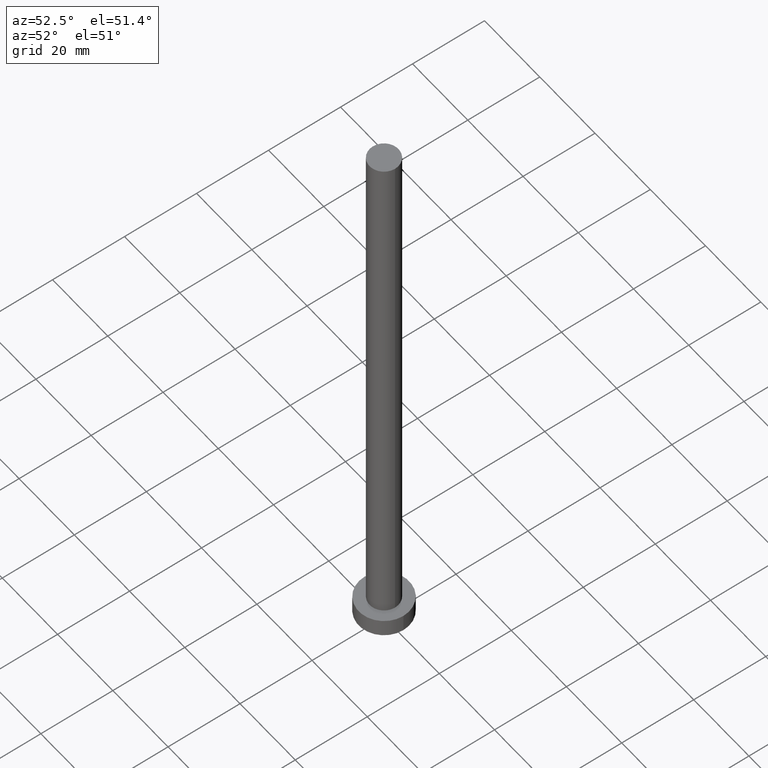
[diagram: clean part render]
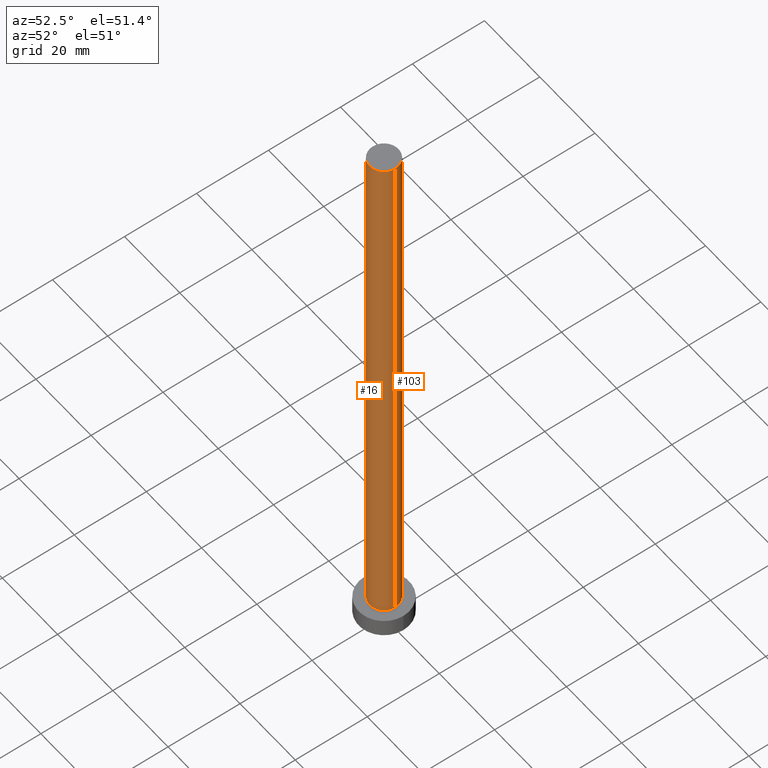
[diagram: same view with one multi-face feature highlighted, each face labeled with its STEP entity id]
A machine part, auxiliary view. The highlighted faces form ONE feature: a constant-radius fillet chain: 2 tangent blend faces with common blend radius 4 mm. The faces share edges in the B-rep.
Their STEP definitions:
[1] entity #103 (Cylinder):
#9 = EDGE_CURVE ( 'NONE', #182, #226, #143, .T. ) ;
#19 = EDGE_CURVE ( 'NONE', #226, #199, #69, .T. ) ;
#20 = ORIENTED_EDGE ( 'NONE', *, *, #19, .T. ) ;
#25 = ORIENTED_EDGE ( 'NONE', *, *, #178, .F. ) ;
#32 = FACE_OUTER_BOUND ( 'NONE', #243, .T. ) ;
#34 = CARTESIAN_POINT ( 'NONE',  ( 0.000000000000000000, 0.000000000000000000, 160.0000000000000000 ) ) ;
#46 = DIRECTION ( 'NONE',  ( 1.000000000000000000, 0.000000000000000000, 0.000000000000000000 ) ) ;
#47 = EDGE_CURVE ( 'NONE', #64, #199, #95, .T. ) ;
#50 = AXIS2_PLACEMENT_3D ( 'NONE', #147, #204, #118 ) ;
#55 = CYLINDRICAL_SURFACE ( 'NONE', #63, 4.000000000000000000 ) ;
#57 = CIRCLE ( 'NONE', #212, 4.000000000000000000 ) ;
#63 = AXIS2_PLACEMENT_3D ( 'NONE', #34, #233, #234 ) ;
#64 = VERTEX_POINT ( 'NONE', #163 ) ;
#69 = CIRCLE ( 'NONE', #50, 4.000000000000000000 ) ;
#84 = VECTOR ( 'NONE', #201, 1000.000000000000000 ) ;
#95 = LINE ( 'NONE', #231, #133 ) ;
#96 = CARTESIAN_POINT ( 'NONE',  ( -4.000000000000000000, 0.000000000000000000, 5.000000000000000000 ) ) ;
#103 = ADVANCED_FACE ( 'NONE', ( #32 ), #55, .T. ) ;
#112 = DIRECTION ( 'NONE',  ( 0.000000000000000000, 0.000000000000000000, 1.000000000000000000 ) ) ;
#118 = DIRECTION ( 'NONE',  ( 1.000000000000000000, 0.000000000000000000, 0.000000000000000000 ) ) ;
#130 = CARTESIAN_POINT ( 'NONE',  ( 4.000000000000000000, 4.898587196589412829E-16, 160.0000000000000000 ) ) ;
#133 = VECTOR ( 'NONE', #168, 1000.000000000000000 ) ;
#143 = LINE ( 'NONE', #130, #84 ) ;
#147 = CARTESIAN_POINT ( 'NONE',  ( 0.000000000000000000, 0.000000000000000000, 5.000000000000000000 ) ) ;
#152 = CARTESIAN_POINT ( 'NONE',  ( 4.000000000000000000, 4.898587196589412829E-16, 160.0000000000000000 ) ) ;
#163 = CARTESIAN_POINT ( 'NONE',  ( -4.000000000000000000, 0.000000000000000000, 160.0000000000000000 ) ) ;
#168 = DIRECTION ( 'NONE',  ( -0.000000000000000000, -0.000000000000000000, -1.000000000000000000 ) ) ;
#178 = EDGE_CURVE ( 'NONE', #182, #64, #57, .T. ) ;
#182 = VERTEX_POINT ( 'NONE', #152 ) ;
#184 = CARTESIAN_POINT ( 'NONE',  ( 4.000000000000000000, 4.898587196589412829E-16, 5.000000000000000000 ) ) ;
#199 = VERTEX_POINT ( 'NONE', #96 ) ;
#201 = DIRECTION ( 'NONE',  ( -0.000000000000000000, -0.000000000000000000, -1.000000000000000000 ) ) ;
#204 = DIRECTION ( 'NONE',  ( 0.000000000000000000, 0.000000000000000000, 1.000000000000000000 ) ) ;
#211 = CARTESIAN_POINT ( 'NONE',  ( 0.000000000000000000, 0.000000000000000000, 160.0000000000000000 ) ) ;
#212 = AXIS2_PLACEMENT_3D ( 'NONE', #211, #112, #46 ) ;
#223 = ORIENTED_EDGE ( 'NONE', *, *, #9, .T. ) ;
#226 = VERTEX_POINT ( 'NONE', #184 ) ;
#231 = CARTESIAN_POINT ( 'NONE',  ( -4.000000000000000000, 0.000000000000000000, 160.0000000000000000 ) ) ;
#233 = DIRECTION ( 'NONE',  ( -0.000000000000000000, -0.000000000000000000, -1.000000000000000000 ) ) ;
#234 = DIRECTION ( 'NONE',  ( -1.000000000000000000, 0.000000000000000000, 0.000000000000000000 ) ) ;
#240 = ORIENTED_EDGE ( 'NONE', *, *, #47, .F. ) ;
#243 = EDGE_LOOP ( 'NONE', ( #25, #223, #20, #240 ) ) ;
[2] entity #16 (Cylinder):
#9 = EDGE_CURVE ( 'NONE', #182, #226, #143, .T. ) ;
#16 = ADVANCED_FACE ( 'NONE', ( #167 ), #116, .T. ) ;
#30 = DIRECTION ( 'NONE',  ( 1.000000000000000000, 0.000000000000000000, 0.000000000000000000 ) ) ;
#38 = ORIENTED_EDGE ( 'NONE', *, *, #101, .F. ) ;
#47 = EDGE_CURVE ( 'NONE', #64, #199, #95, .T. ) ;
#48 = DIRECTION ( 'NONE',  ( -1.000000000000000000, 0.000000000000000000, 0.000000000000000000 ) ) ;
#54 = CARTESIAN_POINT ( 'NONE',  ( 0.000000000000000000, 0.000000000000000000, 5.000000000000000000 ) ) ;
#64 = VERTEX_POINT ( 'NONE', #163 ) ;
#77 = DIRECTION ( 'NONE',  ( 1.000000000000000000, 0.000000000000000000, 0.000000000000000000 ) ) ;
#84 = VECTOR ( 'NONE', #201, 1000.000000000000000 ) ;
#88 = ORIENTED_EDGE ( 'NONE', *, *, #160, .T. ) ;
#95 = LINE ( 'NONE', #231, #133 ) ;
#96 = CARTESIAN_POINT ( 'NONE',  ( -4.000000000000000000, 0.000000000000000000, 5.000000000000000000 ) ) ;
#98 = AXIS2_PLACEMENT_3D ( 'NONE', #188, #227, #48 ) ;
#101 = EDGE_CURVE ( 'NONE', #64, #182, #228, .T. ) ;
#108 = AXIS2_PLACEMENT_3D ( 'NONE', #54, #250, #77 ) ;
#116 = CYLINDRICAL_SURFACE ( 'NONE', #98, 4.000000000000000000 ) ;
#130 = CARTESIAN_POINT ( 'NONE',  ( 4.000000000000000000, 4.898587196589412829E-16, 160.0000000000000000 ) ) ;
#133 = VECTOR ( 'NONE', #168, 1000.000000000000000 ) ;
#143 = LINE ( 'NONE', #130, #84 ) ;
#149 = CARTESIAN_POINT ( 'NONE',  ( 0.000000000000000000, 0.000000000000000000, 160.0000000000000000 ) ) ;
#152 = CARTESIAN_POINT ( 'NONE',  ( 4.000000000000000000, 4.898587196589412829E-16, 160.0000000000000000 ) ) ;
#160 = EDGE_CURVE ( 'NONE', #199, #226, #224, .T. ) ;
#163 = CARTESIAN_POINT ( 'NONE',  ( -4.000000000000000000, 0.000000000000000000, 160.0000000000000000 ) ) ;
#167 = FACE_OUTER_BOUND ( 'NONE', #179, .T. ) ;
#168 = DIRECTION ( 'NONE',  ( -0.000000000000000000, -0.000000000000000000, -1.000000000000000000 ) ) ;
#179 = EDGE_LOOP ( 'NONE', ( #180, #38, #242, #88 ) ) ;
#180 = ORIENTED_EDGE ( 'NONE', *, *, #9, .F. ) ;
#182 = VERTEX_POINT ( 'NONE', #152 ) ;
#184 = CARTESIAN_POINT ( 'NONE',  ( 4.000000000000000000, 4.898587196589412829E-16, 5.000000000000000000 ) ) ;
#188 = CARTESIAN_POINT ( 'NONE',  ( 0.000000000000000000, 0.000000000000000000, 160.0000000000000000 ) ) ;
#199 = VERTEX_POINT ( 'NONE', #96 ) ;
#201 = DIRECTION ( 'NONE',  ( -0.000000000000000000, -0.000000000000000000, -1.000000000000000000 ) ) ;
#207 = DIRECTION ( 'NONE',  ( 0.000000000000000000, 0.000000000000000000, 1.000000000000000000 ) ) ;
#215 = AXIS2_PLACEMENT_3D ( 'NONE', #149, #207, #30 ) ;
#224 = CIRCLE ( 'NONE', #108, 4.000000000000000000 ) ;
#226 = VERTEX_POINT ( 'NONE', #184 ) ;
#227 = DIRECTION ( 'NONE',  ( -0.000000000000000000, -0.000000000000000000, -1.000000000000000000 ) ) ;
#228 = CIRCLE ( 'NONE', #215, 4.000000000000000000 ) ;
#231 = CARTESIAN_POINT ( 'NONE',  ( -4.000000000000000000, 0.000000000000000000, 160.0000000000000000 ) ) ;
#242 = ORIENTED_EDGE ( 'NONE', *, *, #47, .T. ) ;
#250 = DIRECTION ( 'NONE',  ( 0.000000000000000000, 0.000000000000000000, 1.000000000000000000 ) ) ;